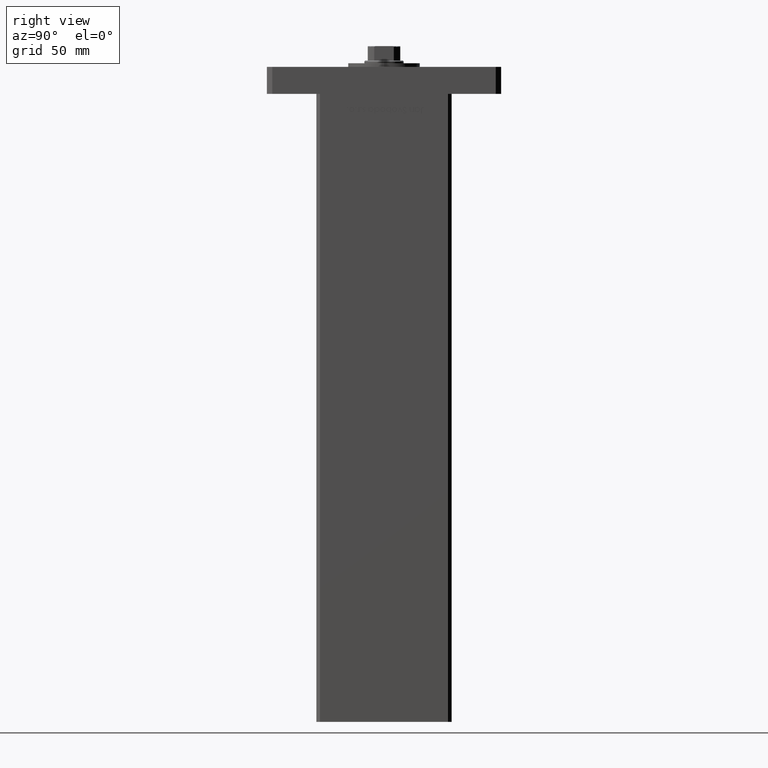
[diagram: clean part render]
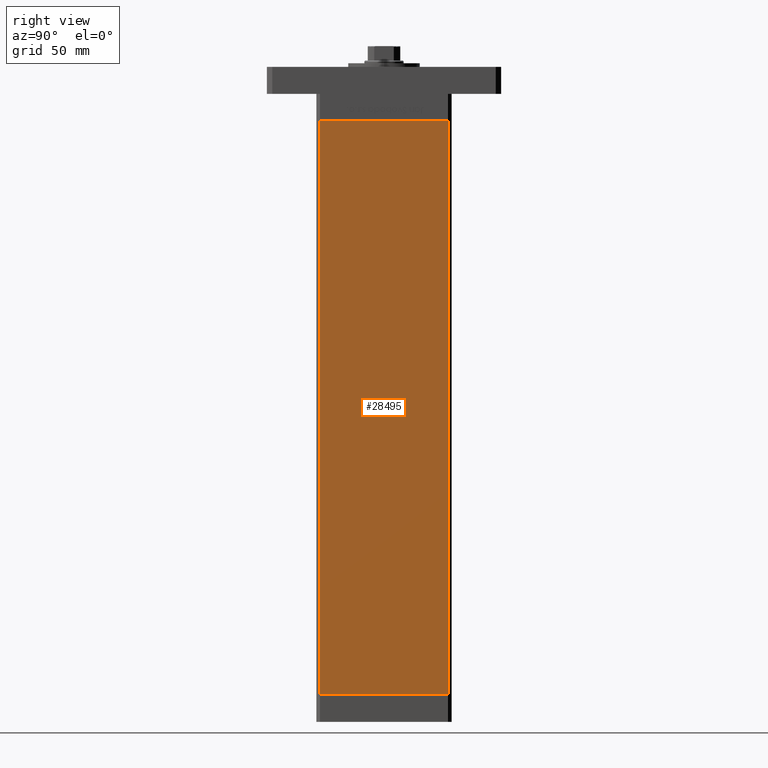
[diagram: same view with one face highlighted and labeled with its STEP entity id]
A machine part, right view. The second image highlights one B-rep face of the part: STEP entity #28495.
In plain terms, the highlighted planar face has unit normal (1, -0, 0).
Its self-contained STEP definition (entity closure, byte-faithful):
#1271 = ORIENTED_EDGE ( 'NONE', *, *, #28795, .F. ) ;
#2788 = EDGE_CURVE ( 'NONE', #19105, #22505, #9564, .T. ) ;
#9564 = LINE ( 'NONE', #38320, #37548 ) ;
#10425 = VERTEX_POINT ( 'NONE', #31741 ) ;
#11821 = AXIS2_PLACEMENT_3D ( 'NONE', #42653, #26105, #39377 ) ;
#11891 = VECTOR ( 'NONE', #14856, 1000.000000000000000 ) ;
#12078 = ORIENTED_EDGE ( 'NONE', *, *, #14613, .T. ) ;
#14613 = EDGE_CURVE ( 'NONE', #16808, #19105, #46809, .T. ) ;
#14856 = DIRECTION ( 'NONE',  ( -2.931927001650941360E-16, -1.000000000000000000, 0.000000000000000000 ) ) ;
#15003 = VECTOR ( 'NONE', #23708, 1000.000000000000000 ) ;
#16105 = CARTESIAN_POINT ( 'NONE',  ( 42.50000000000000711, 35.50000000000001421, 318.5000000000000000 ) ) ;
#16808 = VERTEX_POINT ( 'NONE', #22959 ) ;
#16847 = EDGE_LOOP ( 'NONE', ( #1271, #41703, #12078, #31097 ) ) ;
#19105 = VERTEX_POINT ( 'NONE', #44752 ) ;
#22505 = VERTEX_POINT ( 'NONE', #40729 ) ;
#22959 = CARTESIAN_POINT ( 'NONE',  ( 42.50000000000000711, 35.50000000000001421, 318.5000000000000000 ) ) ;
#23708 = DIRECTION ( 'NONE',  ( -0.000000000000000000, -0.000000000000000000, -1.000000000000000000 ) ) ;
#25199 = LINE ( 'NONE', #37683, #11891 ) ;
#26105 = DIRECTION ( 'NONE',  ( 1.000000000000000000, -2.931927001650941360E-16, 0.000000000000000000 ) ) ;
#26116 = DIRECTION ( 'NONE',  ( -0.000000000000000000, -0.000000000000000000, -1.000000000000000000 ) ) ;
#26897 = FACE_OUTER_BOUND ( 'NONE', #16847, .T. ) ;
#27165 = VECTOR ( 'NONE', #34857, 1000.000000000000000 ) ;
#28495 = ADVANCED_FACE ( 'NONE', ( #26897 ), #43191, .T. ) ;
#28795 = EDGE_CURVE ( 'NONE', #10425, #22505, #25199, .T. ) ;
#31097 = ORIENTED_EDGE ( 'NONE', *, *, #2788, .T. ) ;
#31741 = CARTESIAN_POINT ( 'NONE',  ( 42.50000000000000711, 35.50000000000001421, 0.000000000000000000 ) ) ;
#34857 = DIRECTION ( 'NONE',  ( -2.931927001650941360E-16, -1.000000000000000000, 0.000000000000000000 ) ) ;
#37548 = VECTOR ( 'NONE', #26116, 1000.000000000000000 ) ;
#37683 = CARTESIAN_POINT ( 'NONE',  ( 42.50000000000000711, 35.50000000000001421, 0.000000000000000000 ) ) ;
#38320 = CARTESIAN_POINT ( 'NONE',  ( 42.49999999999998579, -35.50000000000000711, 318.5000000000000000 ) ) ;
#39377 = DIRECTION ( 'NONE',  ( 2.931927001650941360E-16, 1.000000000000000000, 0.000000000000000000 ) ) ;
#40729 = CARTESIAN_POINT ( 'NONE',  ( 42.49999999999998579, -35.50000000000000711, 0.000000000000000000 ) ) ;
#41703 = ORIENTED_EDGE ( 'NONE', *, *, #46681, .F. ) ;
#42653 = CARTESIAN_POINT ( 'NONE',  ( 42.50000000000000711, 35.50000000000001421, 318.5000000000000000 ) ) ;
#43019 = CARTESIAN_POINT ( 'NONE',  ( 42.50000000000000711, 35.50000000000001421, 318.5000000000000000 ) ) ;
#43191 = PLANE ( 'NONE',  #11821 ) ;
#44752 = CARTESIAN_POINT ( 'NONE',  ( 42.49999999999998579, -35.50000000000000711, 318.5000000000000000 ) ) ;
#45395 = LINE ( 'NONE', #16105, #15003 ) ;
#46681 = EDGE_CURVE ( 'NONE', #16808, #10425, #45395, .T. ) ;
#46809 = LINE ( 'NONE', #43019, #27165 ) ;